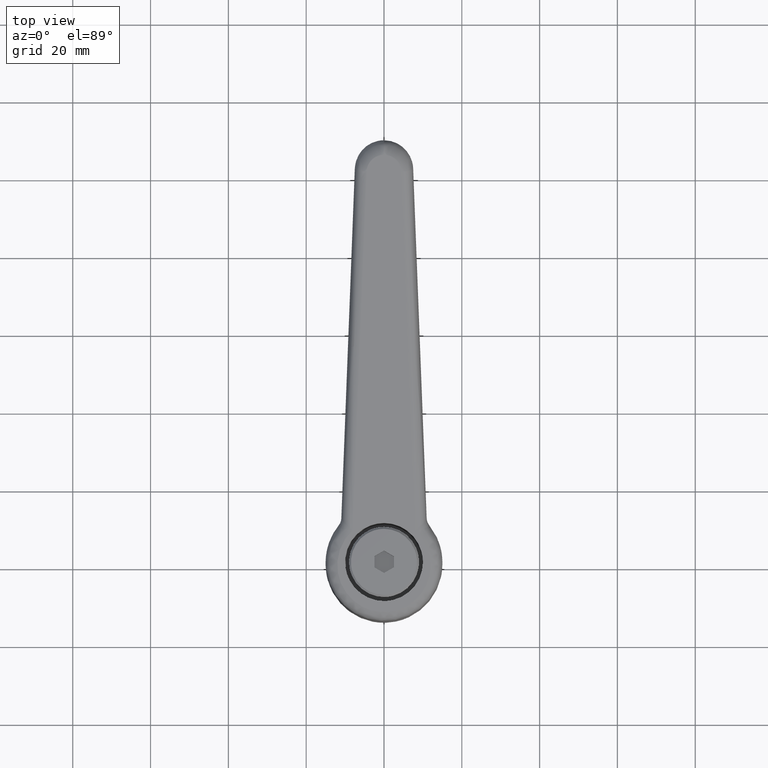
[diagram: clean part render]
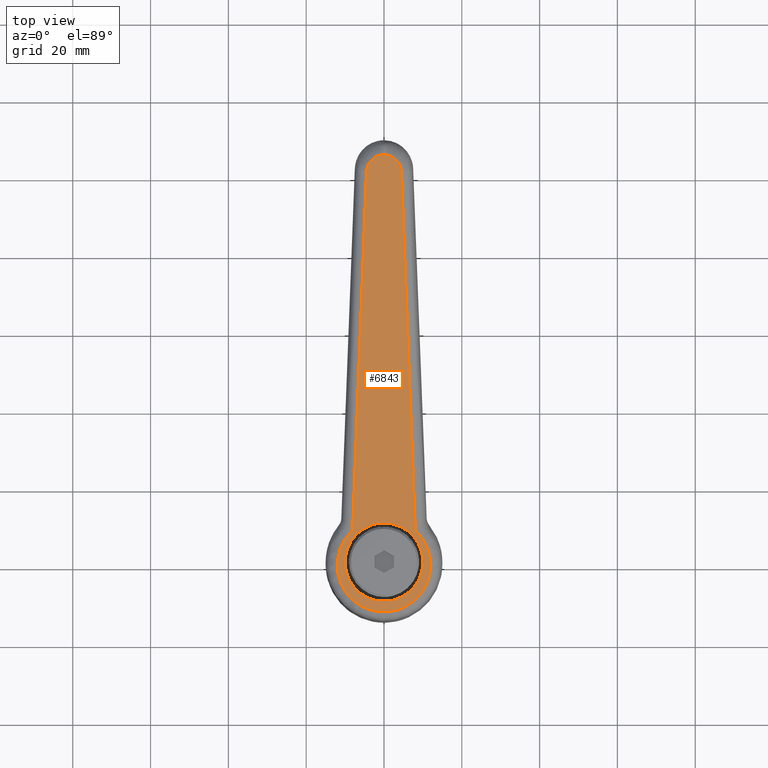
[diagram: same view with one face highlighted and labeled with its STEP entity id]
A machine part, top view. The second image highlights one B-rep face of the part: STEP entity #6843.
In plain terms, the highlighted face is a freeform B-spline surface patch.
Its self-contained STEP definition (entity closure, byte-faithful):
#1842=CARTESIAN_POINT('',(-0.087265355193670,-9.999619230639880,47.911946759517058));
#1843=VERTEX_POINT('',#1842);
#1849=CARTESIAN_POINT('',(9.999999999999998,1.224606E-015,50.618287176648231));
#1850=VERTEX_POINT('',#1849);
#1851=CARTESIAN_POINT('',(9.999999999999998,1.224606E-015,50.618287176648231));
#1852=CARTESIAN_POINT('',(9.999999999999998,-10.000000000000002,50.618287176648252));
#1853=CARTESIAN_POINT('',(1.836910E-015,-10.0,47.935359423886197));
#1854=CARTESIAN_POINT('',(-0.043633508416958,-10.0,47.923652868817967));
#1855=CARTESIAN_POINT('',(-0.087265355193670,-9.999619230639880,47.911946759517051));
#1863=(BOUNDED_CURVE()B_SPLINE_CURVE(2,(#1851,#1852,#1853,#1854,#1855),.UNSPECIFIED.,.F.,.U.)B_SPLINE_CURVE_WITH_KNOTS((3,2,3),(0.500000000000000,0.750000000000000,0.751539894342383),.UNSPECIFIED.)CURVE()GEOMETRIC_REPRESENTATION_ITEM()RATIONAL_B_SPLINE_CURVE((1.0,0.707106781186548,1.0,0.998195901557707,0.996414028083290))REPRESENTATION_ITEM(''));
#1864=EDGE_CURVE('',#1850,#1843,#1863,.T.);
#1866=CARTESIAN_POINT('',(-1.659384539947403,9.861361110342909,47.490158540382673));
#1867=VERTEX_POINT('',#1866);
#1868=CARTESIAN_POINT('',(-1.659384539947403,9.861361110342909,47.490158540382666));
#1869=CARTESIAN_POINT('',(-0.835483797341762,10.0,47.711205157199075));
#1870=CARTESIAN_POINT('',(-6.123032E-016,10.0,47.935359423886197));
#1871=CARTESIAN_POINT('',(9.999999999999998,10.000000000000002,50.618287176648252));
#1872=CARTESIAN_POINT('',(9.999999999999998,1.224606E-015,50.618287176648231));
#1880=(BOUNDED_CURVE()B_SPLINE_CURVE(2,(#1868,#1869,#1870,#1871,#1872),.UNSPECIFIED.,.F.,.U.)B_SPLINE_CURVE_WITH_KNOTS((3,2,3),(0.221449239577845,0.250000000000000,0.500000000000000),.UNSPECIFIED.)CURVE()GEOMETRIC_REPRESENTATION_ITEM()RATIONAL_B_SPLINE_CURVE((0.940741429843438,0.966550703521534,1.0,0.707106781186548,1.0))REPRESENTATION_ITEM(''));
#1881=EDGE_CURVE('',#1867,#1850,#1880,.T.);
#1929=CARTESIAN_POINT('',(-9.999999999999998,0.0,45.252431671124171));
#1930=VERTEX_POINT('',#1929);
#1931=CARTESIAN_POINT('',(-9.999999999999998,0.0,45.252431671124171));
#1932=CARTESIAN_POINT('',(-10.0,8.457874492790573,45.252431671124164));
#1933=CARTESIAN_POINT('',(-1.659384539947403,9.861361110342909,47.490158540382666));
#1941=(BOUNDED_CURVE()B_SPLINE_CURVE(2,(#1931,#1932,#1933),.UNSPECIFIED.,.F.,.U.)B_SPLINE_CURVE_WITH_KNOTS((3,3),(0.0,0.221449239577845),.UNSPECIFIED.)CURVE()GEOMETRIC_REPRESENTATION_ITEM()RATIONAL_B_SPLINE_CURVE((1.0,0.740556077665014,0.940741429843438))REPRESENTATION_ITEM(''));
#1942=EDGE_CURVE('',#1930,#1867,#1941,.T.);
#1944=CARTESIAN_POINT('',(-0.087265355193670,-9.999619230639880,47.911946759517051));
#1945=CARTESIAN_POINT('',(-9.999999999999998,-9.913112105533536,45.252431671124157));
#1946=CARTESIAN_POINT('',(-9.999999999999998,0.0,45.252431671124171));
#1954=(BOUNDED_CURVE()B_SPLINE_CURVE(2,(#1944,#1945,#1946),.UNSPECIFIED.,.F.,.U.)B_SPLINE_CURVE_WITH_KNOTS((3,3),(0.751539894342383,1.0),.UNSPECIFIED.)CURVE()GEOMETRIC_REPRESENTATION_ITEM()RATIONAL_B_SPLINE_CURVE((0.996414028083290,0.708910879628840,1.0))REPRESENTATION_ITEM(''));
#1955=EDGE_CURVE('',#1843,#1930,#1954,.T.);
#4429=CARTESIAN_POINT('',(8.123781733177820,8.047932275665861,50.114911370818703));
#4430=VERTEX_POINT('',#4429);
#4961=CARTESIAN_POINT('',(8.123781733177699,-8.047932275665991,50.114911370818703));
#4962=VERTEX_POINT('',#4961);
#6430=CARTESIAN_POINT('',(8.123781733177834,8.047932275665847,50.114911370818660));
#6431=CARTESIAN_POINT('',(2.598695241357906,14.158784061128220,48.632570582287229));
#6432=CARTESIAN_POINT('',(-5.089345353260654,11.198526960557951,46.569924834720908));
#6433=CARTESIAN_POINT('',(-12.777385947879289,8.238269859987652,44.507279087154565));
#6434=CARTESIAN_POINT('',(-12.777385947879290,9.886232E-014,44.507279087154572));
#6435=CARTESIAN_POINT('',(-12.777385947879289,-8.238269859987508,44.507279087154565));
#6436=CARTESIAN_POINT('',(-5.089345353260838,-11.198526960557880,46.569924834720858));
#6437=CARTESIAN_POINT('',(2.598695241357674,-14.158784061128268,48.632570582287173));
#6438=CARTESIAN_POINT('',(8.123781733177703,-8.047932275665994,50.114911370818632));
#6446=(BOUNDED_CURVE()B_SPLINE_CURVE(2,(#6430,#6431,#6432,#6433,#6434,#6435,#6436,#6437,#6438),.UNSPECIFIED.,.F.,.U.)B_SPLINE_CURVE_WITH_KNOTS((3,2,2,2,3),(0.0,0.250000000000000,0.500000000000000,0.750000000000000,1.0),.UNSPECIFIED.)CURVE()GEOMETRIC_REPRESENTATION_ITEM()RATIONAL_B_SPLINE_CURVE((1.0,0.824417961488121,1.0,0.824417961488121,1.0,0.824417961488121,1.0,0.824417961488121,1.0))REPRESENTATION_ITEM(''));
#6447=EDGE_CURVE('',#4430,#4962,#6446,.T.);
#6474=CARTESIAN_POINT('',(99.896618855952298,4.496628667928765,74.736900537458794));
#6475=VERTEX_POINT('',#6474);
#6476=CARTESIAN_POINT('',(99.896618855952298,4.496628667928765,74.736900537458794));
#6477=CARTESIAN_POINT('',(8.123781733177820,8.047932275665861,50.114911370818703));
#6478=QUASI_UNIFORM_CURVE('',1,(#6476,#6477),.UNSPECIFIED.,.F.,.U.);
#6479=EDGE_CURVE('',#6475,#4430,#6478,.T.);
#6513=CARTESIAN_POINT('',(99.896618855961606,-4.496628667928494,74.736900537461295));
#6514=VERTEX_POINT('',#6513);
#6515=CARTESIAN_POINT('',(8.123781733177699,-8.047932275665991,50.114911370818703));
#6516=CARTESIAN_POINT('',(99.896618855961606,-4.496628667928494,74.736900537461295));
#6517=QUASI_UNIFORM_CURVE('',1,(#6515,#6516),.UNSPECIFIED.,.F.,.U.);
#6518=EDGE_CURVE('',#4962,#6514,#6517,.T.);
#6590=CARTESIAN_POINT('',(104.222614052114590,-0.000005887852206,75.897533794468700));
#6591=VERTEX_POINT('',#6590);
#6623=CARTESIAN_POINT('',(104.222614052114590,-0.000005887852206,75.897533794468700));
#6624=CARTESIAN_POINT('',(104.222614052120700,4.329227039856051,75.897533794470320));
#6625=CARTESIAN_POINT('',(99.896618855952298,4.496628667928764,74.736900537458780));
#6633=(BOUNDED_CURVE()B_SPLINE_CURVE(2,(#6623,#6624,#6625),.UNSPECIFIED.,.F.,.U.)CURVE()GEOMETRIC_REPRESENTATION_ITEM()QUASI_UNIFORM_CURVE()RATIONAL_B_SPLINE_CURVE((1.0,0.720648227009823,1.0))REPRESENTATION_ITEM(''));
#6634=EDGE_CURVE('',#6591,#6475,#6633,.T.);
#6698=CARTESIAN_POINT('',(99.896618855961606,-4.496628667928494,74.736900537461295));
#6699=CARTESIAN_POINT('',(104.222602723306790,-4.329227478244406,75.897530755031397));
#6700=CARTESIAN_POINT('',(104.222614052114590,-0.000005887852206,75.897533794468686));
#6708=(BOUNDED_CURVE()B_SPLINE_CURVE(2,(#6698,#6699,#6700),.UNSPECIFIED.,.F.,.U.)CURVE()GEOMETRIC_REPRESENTATION_ITEM()QUASI_UNIFORM_CURVE()RATIONAL_B_SPLINE_CURVE((1.0,0.720649134132096,1.0))REPRESENTATION_ITEM(''));
#6709=EDGE_CURVE('',#6514,#6591,#6708,.T.);
#6825=CARTESIAN_POINT('',(-18.621535303104039,-13.188954710646289,42.939336037512717));
#6826=CARTESIAN_POINT('',(110.066758177031800,-13.188954710646289,77.465475440856864));
#6827=CARTESIAN_POINT('',(-18.621535303104039,13.188955154988140,42.939336037512717));
#6828=CARTESIAN_POINT('',(110.066758177031800,13.188955154988140,77.465475440856864));
#6829=B_SPLINE_SURFACE_WITH_KNOTS('',1,1,((#6825,#6827),(#6826,#6828)),.UNSPECIFIED.,.F.,.F.,.U.,(2,2),(2,2),(0.0,133.239375489863110),(0.0,26.377909865634429),.UNSPECIFIED.);
#6830=ORIENTED_EDGE('',*,*,#6479,.T.);
#6831=ORIENTED_EDGE('',*,*,#6447,.T.);
#6832=ORIENTED_EDGE('',*,*,#6518,.T.);
#6833=ORIENTED_EDGE('',*,*,#6709,.T.);
#6834=ORIENTED_EDGE('',*,*,#6634,.T.);
#6835=EDGE_LOOP('',(#6830,#6831,#6832,#6833,#6834));
#6836=FACE_OUTER_BOUND('',#6835,.T.);
#6837=ORIENTED_EDGE('',*,*,#1864,.T.);
#6838=ORIENTED_EDGE('',*,*,#1955,.T.);
#6839=ORIENTED_EDGE('',*,*,#1942,.T.);
#6840=ORIENTED_EDGE('',*,*,#1881,.T.);
#6841=EDGE_LOOP('',(#6837,#6838,#6839,#6840));
#6842=FACE_BOUND('',#6841,.T.);
#6843=ADVANCED_FACE('',(#6836,#6842),#6829,.T.);